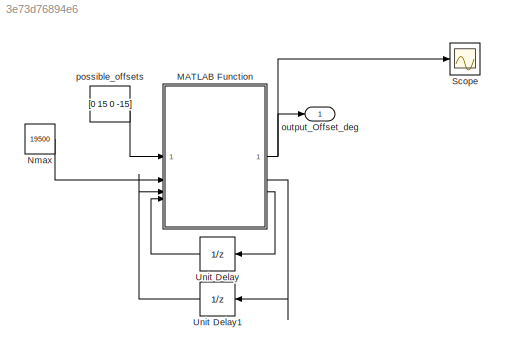
MODEL slx_3e73d76894e6
KIND model
CONFIG AbsTol = auto
CONFIG EnableMultiTasking = off
CONFIG FixedStep = 0.1
CONFIG MaxStep = auto
CONFIG MinStep = auto
CONFIG RelTol = 1e-3
CONFIG SampleTimeConstraint = Unconstrained
CONFIG SolverName = FixedStepDiscrete
CONFIG StartTime = 0
CONFIG StopTime = duration
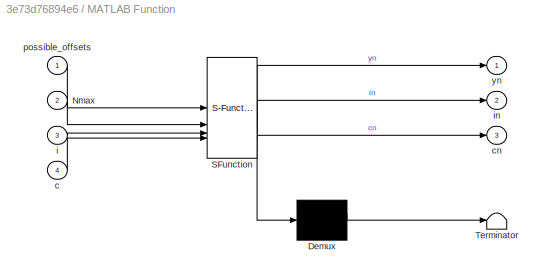
BLOCK [SubSystem] MATLAB Function
  ErrorFcn = Stateflow.Translate.translate
  PermitHierarchicalResolution = ExplicitOnly
  SFBlockType = MATLAB Function
  TreatAsAtomicUnit = on
BLOCK [Demux] MATLAB Function/ Demux 
  Outputs = 1
BLOCK [S-Function] MATLAB Function/ SFunction 
  EnableBusSupport = on
  FunctionName = sf_sfun
  PortCounts = [4 4]
  SFcnIsStateOwnerBlock = off
  SFunctionDeploymentMode = off
  Tag = Stateflow S-Function 2
BLOCK [Terminator] MATLAB Function/ Terminator 
BLOCK [Inport] MATLAB Function/Nmax
  Port = 2
BLOCK [Inport] MATLAB Function/c
  Port = 4
BLOCK [Outport] MATLAB Function/cn
  Port = 3
BLOCK [Inport] MATLAB Function/i
  Port = 3
BLOCK [Outport] MATLAB Function/in
  Port = 2
BLOCK [Inport] MATLAB Function/possible_offsets
BLOCK [Outport] MATLAB Function/yn
BLOCK [Constant] Nmax
  NameLocation = top
  Value = 19500
BLOCK [Scope] Scope
  Floating = off
  NumInputPorts = 1
  ScopeSpecificationString = Simulink.scopes.TimeScopeBlockCfg('CurrentConfiguration', extmgr.ConfigurationSet(extmgr.Configuration('Core','General UI',true),extmgr.Configuration('Core','Source UI',true),extmgr.Configuration('Sources','WiredSimulink',true),extmgr.Configuration('Visuals','Time Domain',true,'SerializedDisplays',{struct('MinYLimReal','-18.75','MaxYLimReal','18.75','YLabelReal','','MinYLimMag','0.00000','MaxYLimM...<+1326ch>
BLOCK [UnitDelay] Unit Delay
  HasFrameUpgradeWarning = on
  NameLocation = top
  SampleTime = 0.1
BLOCK [UnitDelay] Unit Delay1
  HasFrameUpgradeWarning = on
  NameLocation = top
  SampleTime = 0.1
BLOCK [Outport] output_Offset_deg
  VectorParamsAs1DForOutWhenUnconnected = off
BLOCK [Constant] possible_offsets
  NameLocation = top
  Value = [0 15 0 -15]
NET MATLAB Function:1 -> Scope:1, output_Offset_deg:1
LINE MATLAB Function:2 -> Unit Delay1:1
LINE MATLAB Function:3 -> Unit Delay:1
LINE Nmax:1 -> MATLAB Function:2
LINE Unit Delay1:1 -> MATLAB Function:3
LINE Unit Delay:1 -> MATLAB Function:4
LINE possible_offsets:1 -> MATLAB Function:1
note: NET lines group one-source signal fan-out (src -> all destinations, sorted); 1:1 wires keep LINE
CHART MATLAB Function states=1 transitions=1
  STATE_LABEL 'eML_blk_kernel()'
  STATE_LABEL 'SCRIPT:\nfunction [yn,in,cn] = fcn(possible_offsets,Nmax,i,c)\n\n% Nmax = 39000; % 65*60/.1;\nNoff = numel(possible_offsets);\n\nif Noff<1\n    yn = 0;\n    in = 0;\n    cn = 0;\n    return\nend\n\ncn = mod(c + 1,Nmax);\n\nif cn, in = mod(i,Noff);\nelse, in = mod(i+1,Noff);\nend\n\nyn = possible_offsets(in+1);'
CHART  states=0 transitions=0
